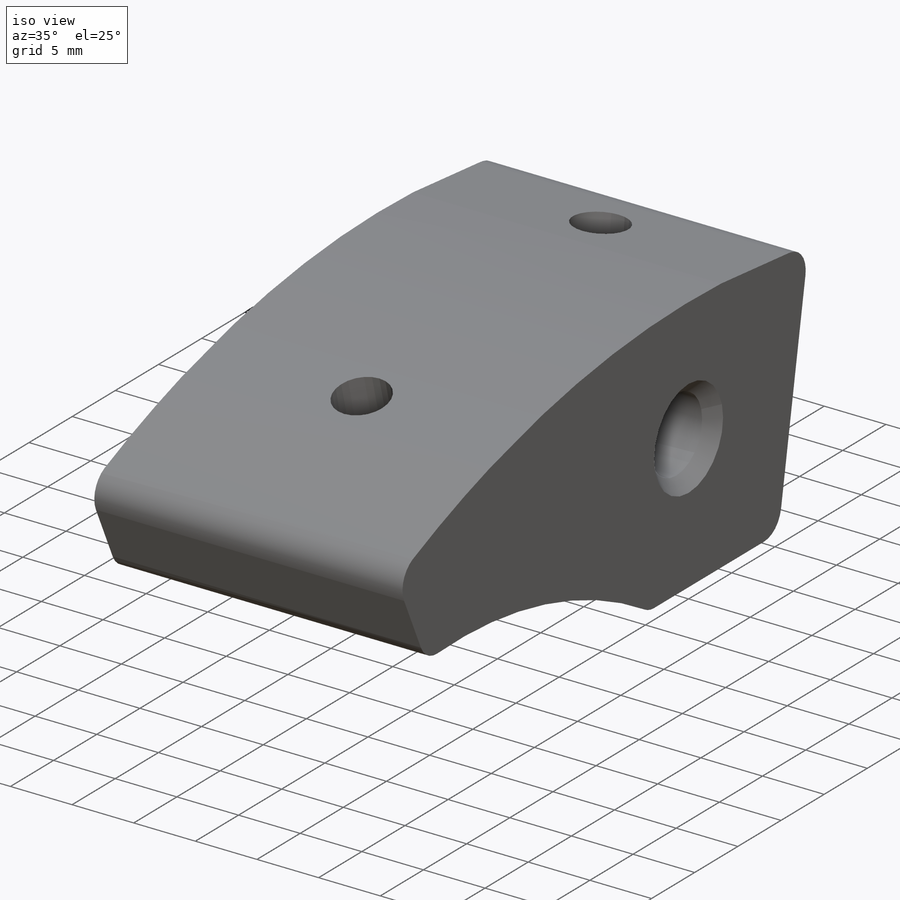
[diagram: iso view]
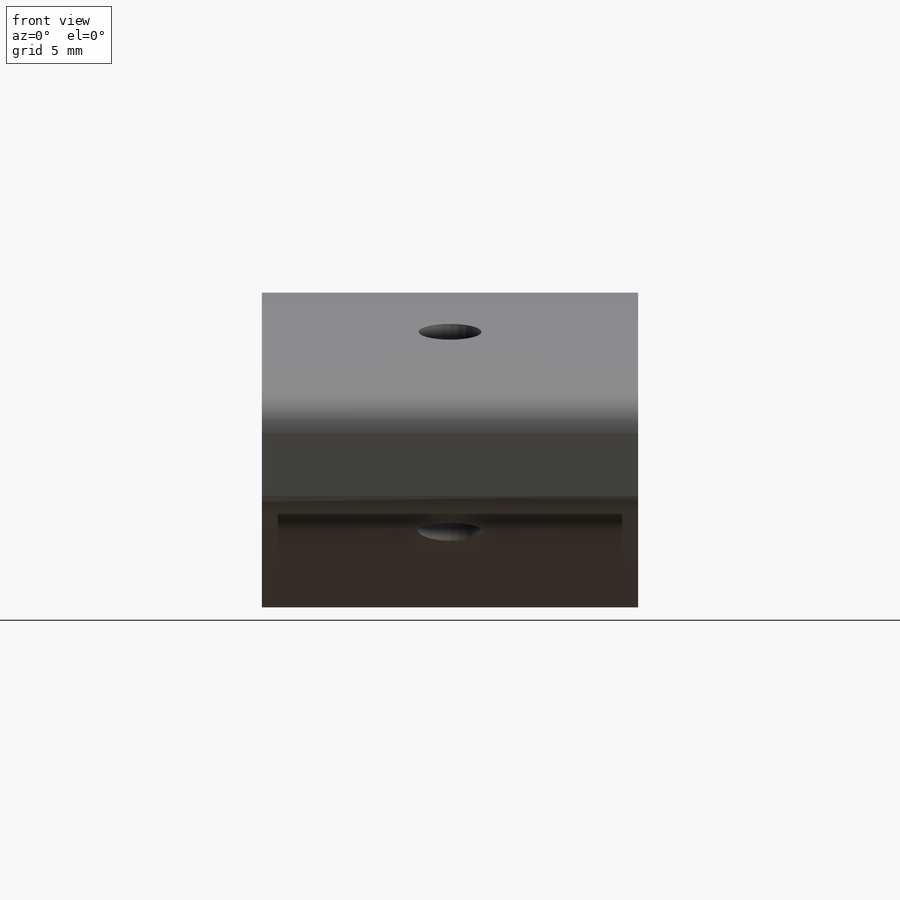
[diagram: front view]
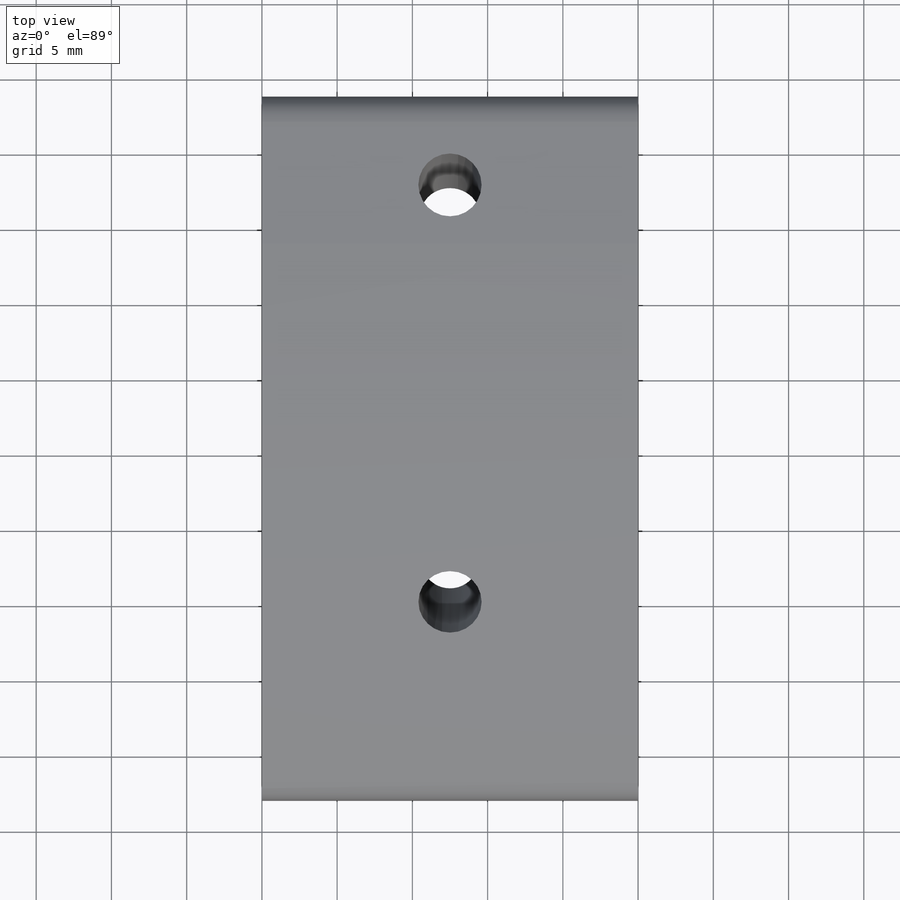
[diagram: top view]
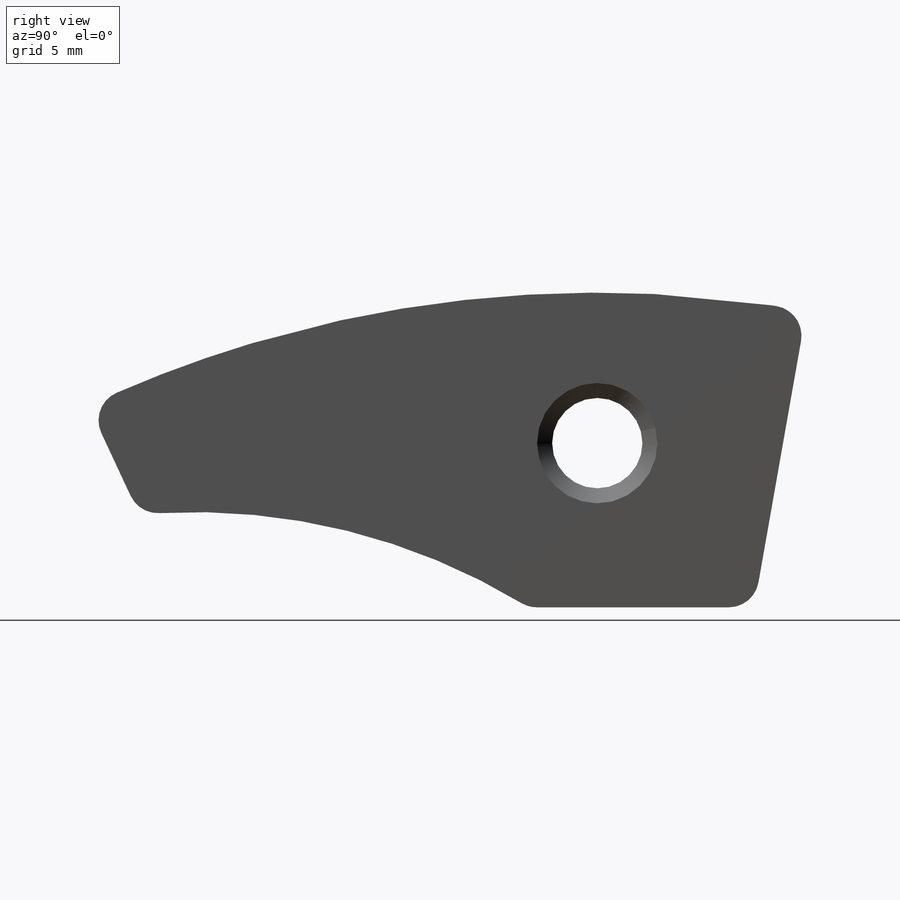
[diagram: right view]
SOLIDWORKS PART (.sldprt)
format: sldprt  version: not decoded by parser v0  size: 350,208 bytes
history: native  units: mm
features: sketch x9, hole x3, material x1, extrude x1, fillet x1, cut_extrude x1, chamfer x1 (+13 scaffold rows collapsed)
feature tree (30):
  scaffold x13  (default folders/planes/origin — collapsed)
  material  "7075-T6 (SN)"
  sketch  "Sketch1"  dims[c1.D1=160.0mm c1.D2=6.0mm c1.D7=42.0mm c1.D10=77.0mm c1.D12=45.0mm c1.D14=~44.490357mm c1.D3=10.0mm c1.D4=80.0mm c2.D4=25.0deg c2.D5=80.0mm c3.D5=10.0deg c3.D6=20.0mm c3.D8=15.0mm c3.D9=8.0mm c3.D11=~79.567519mm c4.D11=6.0deg c4.D10=3.0mm c4.D12=3.0mm c4.D13=4.0mm c4.D14=~0.509643mm c5.D10=3.0mm]
  extrude  "Boss-Extrude1"  Depth=25mm
  fillet  "Fillet2"  Radius=2mm
  sketch  "Sketch3"  dims[c1.D5=160.0mm c1.D1=7.0mm c1.D2=7.0mm c1.D3=2.0mm c1.D4=9.0mm c1.D6=80.0mm c2.D6=5.5deg c2.D1=10.0mm c2.D7=~77.418647mm c3.D7=14.5deg c3.D2=4.0mm]
  cut_extrude  "Cut-Extrude1"  [1 undecoded]
  hole  "M5 Tapped Hole1"  Diameter=4.2mm Depth=22.4mm
  sketch  "Sketch7"
  sketch  "Sketch8"  dims[hole-wizard template sketch: 47 standard entries collapsed; hole parameters kept: c15.Tap Drill Depth=22.4mm c15.D3=~14.816244mm c15.Drill Angle=118.0deg]
  hole  "M5 Tapped Hole2"  Diameter=4.2mm Depth=22.4mm
  sketch  "Sketch10"
  sketch  "Sketch9"  dims[hole-wizard template sketch: 47 standard entries collapsed; hole parameters kept: c15.Tap Drill Depth=22.4mm c15.D3=~14.816244mm c15.Drill Angle=118.0deg]
  sketch  "Sketch11"
  hole  "M4 Tapped Hole1"  Diameter=3.3mm Depth=10.1mm
  sketch  "Sketch13"  dims[D1=12.0mm D2=6.0mm]
  sketch  "Sketch12"  dims[hole-wizard template sketch: 50 standard entries collapsed; hole parameters above]
  chamfer  "Chamfer1"  Distance=1mm Angle=45deg
decode coverage: 12 of 16 modeling features carry decoded parameters
note: ~ marks probable driven/reference dimensions
note: 1 parameter value undecoded
note: suppression state not decoded; provenance and decode notes live in map.json
